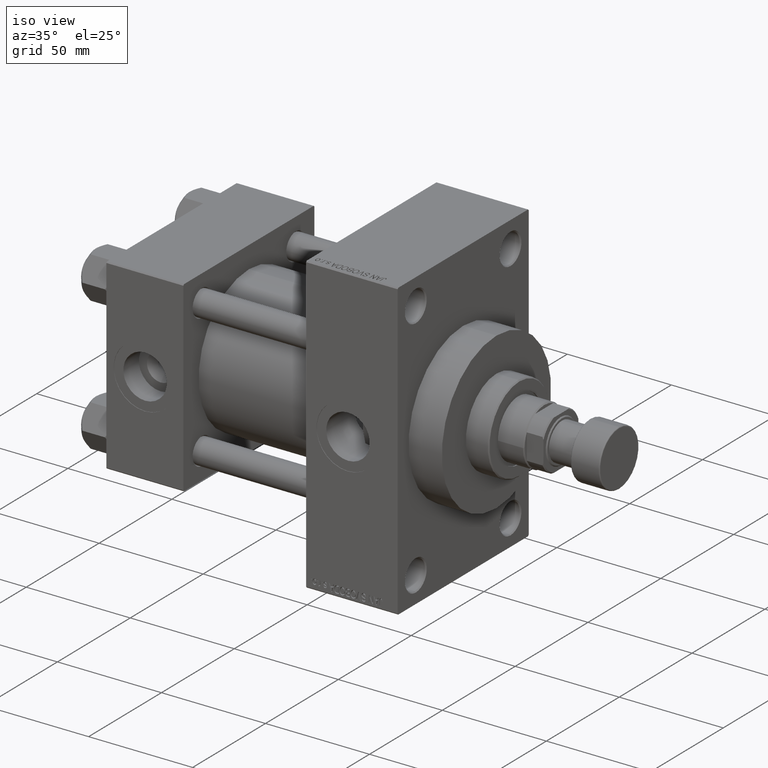
[diagram: clean part render]
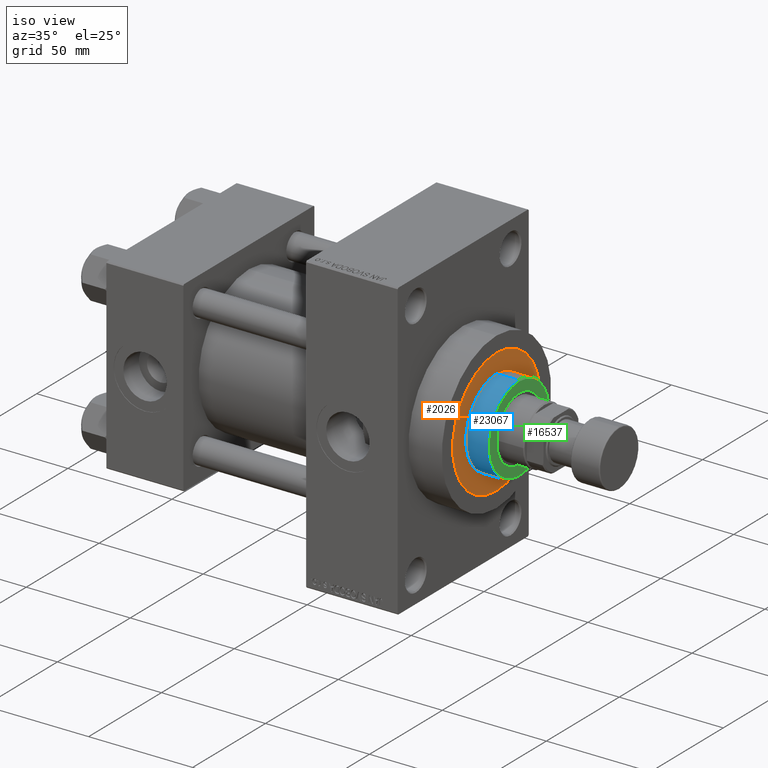
[diagram: same view with three faces highlighted in distinct colors, each labeled with its STEP entity id]
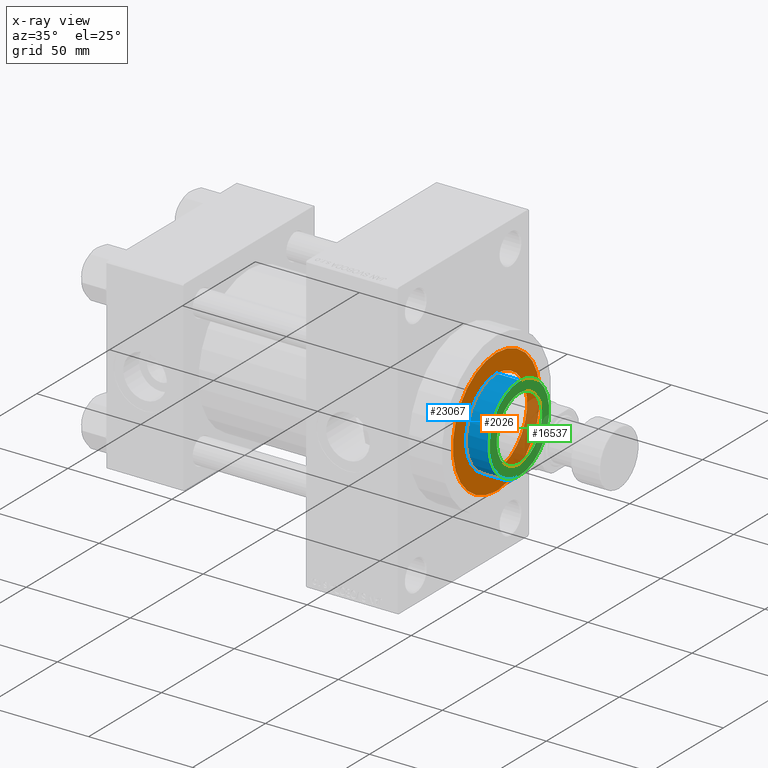
[diagram: x-ray of the same camera — body ghosted, the three highlighted faces saturated]
A machine part, iso view with three faces highlighted in distinct colors.
The next image is the same camera in x-ray (body ghosted, the three faces saturated) — at least one of them is partly hidden behind the body in this view.
Their STEP definitions:

[orange] entity #2026 — the highlighted planar face has unit normal (1, -0, -0).
#1136 = CARTESIAN_POINT ( 'NONE',  ( -30.00000000000000000, 0.000000000000000000, 43.25999999999999801 ) ) ;
#2026 = ADVANCED_FACE ( 'NONE', ( #4535, #11760 ), #22506, .T. ) ;
#2243 = VERTEX_POINT ( 'NONE', #36605 ) ;
#2377 = EDGE_CURVE ( 'NONE', #46718, #32884, #3151, .T. ) ;
#2718 = EDGE_CURVE ( 'NONE', #39405, #2243, #20678, .T. ) ;
#3151 = CIRCLE ( 'NONE', #34219, 21.00000000000000000 ) ;
#4535 = FACE_BOUND ( 'NONE', #27519, .T. ) ;
#5535 = AXIS2_PLACEMENT_3D ( 'NONE', #19518, #37767, #18780 ) ;
#7117 = CARTESIAN_POINT ( 'NONE',  ( 0.000000000000000000, 0.000000000000000000, 43.25999999999999801 ) ) ;
#9986 = EDGE_CURVE ( 'NONE', #2243, #39405, #10427, .T. ) ;
#10427 = CIRCLE ( 'NONE', #44766, 30.00000000000000000 ) ;
#11760 = FACE_OUTER_BOUND ( 'NONE', #38059, .T. ) ;
#13329 = CIRCLE ( 'NONE', #43679, 21.00000000000000000 ) ;
#14772 = DIRECTION ( 'NONE',  ( 1.000000000000000000, 0.000000000000000000, -0.000000000000000000 ) ) ;
#15590 = DIRECTION ( 'NONE',  ( 0.000000000000000000, 0.000000000000000000, 1.000000000000000000 ) ) ;
#18780 = DIRECTION ( 'NONE',  ( 1.000000000000000000, 0.000000000000000000, 0.000000000000000000 ) ) ;
#18835 = DIRECTION ( 'NONE',  ( 1.000000000000000000, 0.000000000000000000, 0.000000000000000000 ) ) ;
#19518 = CARTESIAN_POINT ( 'NONE',  ( 0.000000000000000000, 0.000000000000000000, 43.25999999999999801 ) ) ;
#19847 = DIRECTION ( 'NONE',  ( 1.000000000000000000, 0.000000000000000000, 0.000000000000000000 ) ) ;
#20092 = CARTESIAN_POINT ( 'NONE',  ( 0.000000000000000000, 0.000000000000000000, 43.25999999999999801 ) ) ;
#20678 = CIRCLE ( 'NONE', #5535, 30.00000000000000000 ) ;
#22338 = DIRECTION ( 'NONE',  ( 0.000000000000000000, 0.000000000000000000, 1.000000000000000000 ) ) ;
#22506 = PLANE ( 'NONE',  #45409 ) ;
#23451 = CARTESIAN_POINT ( 'NONE',  ( 21.00000000000000000, 2.571758278209441661E-15, 43.25999999999999801 ) ) ;
#25426 = ORIENTED_EDGE ( 'NONE', *, *, #48857, .F. ) ;
#27519 = EDGE_LOOP ( 'NONE', ( #25426, #28649 ) ) ;
#28649 = ORIENTED_EDGE ( 'NONE', *, *, #2377, .F. ) ;
#31492 = CARTESIAN_POINT ( 'NONE',  ( 0.000000000000000000, 0.000000000000000000, 43.25999999999999801 ) ) ;
#31746 = DIRECTION ( 'NONE',  ( 0.000000000000000000, 0.000000000000000000, 1.000000000000000000 ) ) ;
#32884 = VERTEX_POINT ( 'NONE', #35078 ) ;
#33780 = DIRECTION ( 'NONE',  ( 0.000000000000000000, 0.000000000000000000, 1.000000000000000000 ) ) ;
#34219 = AXIS2_PLACEMENT_3D ( 'NONE', #7117, #22338, #18835 ) ;
#35078 = CARTESIAN_POINT ( 'NONE',  ( -21.00000000000000000, 0.000000000000000000, 43.25999999999999801 ) ) ;
#36605 = CARTESIAN_POINT ( 'NONE',  ( 30.00000000000000000, 3.673940397442059178E-15, 43.25999999999999801 ) ) ;
#37767 = DIRECTION ( 'NONE',  ( 0.000000000000000000, 0.000000000000000000, 1.000000000000000000 ) ) ;
#38059 = EDGE_LOOP ( 'NONE', ( #47936, #40858 ) ) ;
#38982 = DIRECTION ( 'NONE',  ( 1.000000000000000000, 0.000000000000000000, 0.000000000000000000 ) ) ;
#39405 = VERTEX_POINT ( 'NONE', #1136 ) ;
#40858 = ORIENTED_EDGE ( 'NONE', *, *, #9986, .T. ) ;
#42251 = CARTESIAN_POINT ( 'NONE',  ( 0.000000000000000000, 0.000000000000000000, 43.25999999999999801 ) ) ;
#43679 = AXIS2_PLACEMENT_3D ( 'NONE', #20092, #15590, #19847 ) ;
#44766 = AXIS2_PLACEMENT_3D ( 'NONE', #31492, #31746, #38982 ) ;
#45409 = AXIS2_PLACEMENT_3D ( 'NONE', #42251, #33780, #14772 ) ;
#46718 = VERTEX_POINT ( 'NONE', #23451 ) ;
#47936 = ORIENTED_EDGE ( 'NONE', *, *, #2718, .T. ) ;
#48857 = EDGE_CURVE ( 'NONE', #32884, #46718, #13329, .T. ) ;

[blue] entity #23067 — the highlighted cylindrical surface (partial cylindrical patch) has radius 21 mm, axis along (-1, 0, 0).
#1891 = CIRCLE ( 'NONE', #29805, 21.00000000000000000 ) ;
#2377 = EDGE_CURVE ( 'NONE', #46718, #32884, #3151, .T. ) ;
#2932 = FACE_OUTER_BOUND ( 'NONE', #34255, .T. ) ;
#3151 = CIRCLE ( 'NONE', #34219, 21.00000000000000000 ) ;
#6632 = ORIENTED_EDGE ( 'NONE', *, *, #30369, .F. ) ;
#7117 = CARTESIAN_POINT ( 'NONE',  ( 0.000000000000000000, 0.000000000000000000, 43.25999999999999801 ) ) ;
#11158 = ORIENTED_EDGE ( 'NONE', *, *, #2377, .T. ) ;
#11793 = LINE ( 'NONE', #42538, #38779 ) ;
#12049 = CARTESIAN_POINT ( 'NONE',  ( 21.00000000000000000, 2.571758278209441661E-15, 53.76000000000001933 ) ) ;
#12584 = LINE ( 'NONE', #24575, #48838 ) ;
#15061 = DIRECTION ( 'NONE',  ( -0.000000000000000000, -0.000000000000000000, -1.000000000000000000 ) ) ;
#15303 = CYLINDRICAL_SURFACE ( 'NONE', #43505, 21.00000000000000000 ) ;
#17657 = DIRECTION ( 'NONE',  ( -1.000000000000000000, 0.000000000000000000, 0.000000000000000000 ) ) ;
#18835 = DIRECTION ( 'NONE',  ( 1.000000000000000000, 0.000000000000000000, 0.000000000000000000 ) ) ;
#18884 = EDGE_CURVE ( 'NONE', #43806, #26006, #1891, .T. ) ;
#22338 = DIRECTION ( 'NONE',  ( 0.000000000000000000, 0.000000000000000000, 1.000000000000000000 ) ) ;
#23067 = ADVANCED_FACE ( 'NONE', ( #2932 ), #15303, .T. ) ;
#23451 = CARTESIAN_POINT ( 'NONE',  ( 21.00000000000000000, 2.571758278209441661E-15, 43.25999999999999801 ) ) ;
#24575 = CARTESIAN_POINT ( 'NONE',  ( -21.00000000000000000, 0.000000000000000000, 54.26000000000000512 ) ) ;
#25267 = EDGE_CURVE ( 'NONE', #26006, #46718, #11793, .T. ) ;
#26006 = VERTEX_POINT ( 'NONE', #12049 ) ;
#27782 = CARTESIAN_POINT ( 'NONE',  ( -21.00000000000000000, 0.000000000000000000, 53.76000000000001933 ) ) ;
#28078 = ORIENTED_EDGE ( 'NONE', *, *, #25267, .T. ) ;
#29805 = AXIS2_PLACEMENT_3D ( 'NONE', #40710, #33950, #36710 ) ;
#30369 = EDGE_CURVE ( 'NONE', #43806, #32884, #12584, .T. ) ;
#31837 = DIRECTION ( 'NONE',  ( -0.000000000000000000, -0.000000000000000000, -1.000000000000000000 ) ) ;
#32884 = VERTEX_POINT ( 'NONE', #35078 ) ;
#33950 = DIRECTION ( 'NONE',  ( 0.000000000000000000, 0.000000000000000000, -1.000000000000000000 ) ) ;
#34219 = AXIS2_PLACEMENT_3D ( 'NONE', #7117, #22338, #18835 ) ;
#34255 = EDGE_LOOP ( 'NONE', ( #40206, #28078, #11158, #6632 ) ) ;
#35078 = CARTESIAN_POINT ( 'NONE',  ( -21.00000000000000000, 0.000000000000000000, 43.25999999999999801 ) ) ;
#36710 = DIRECTION ( 'NONE',  ( 1.000000000000000000, 0.000000000000000000, 0.000000000000000000 ) ) ;
#38279 = DIRECTION ( 'NONE',  ( -0.000000000000000000, -0.000000000000000000, -1.000000000000000000 ) ) ;
#38779 = VECTOR ( 'NONE', #38279, 1000.000000000000000 ) ;
#40206 = ORIENTED_EDGE ( 'NONE', *, *, #18884, .T. ) ;
#40710 = CARTESIAN_POINT ( 'NONE',  ( 0.000000000000000000, 0.000000000000000000, 53.76000000000001933 ) ) ;
#42538 = CARTESIAN_POINT ( 'NONE',  ( 21.00000000000000000, 2.571758278209441661E-15, 54.26000000000000512 ) ) ;
#43505 = AXIS2_PLACEMENT_3D ( 'NONE', #44656, #15061, #17657 ) ;
#43806 = VERTEX_POINT ( 'NONE', #27782 ) ;
#44656 = CARTESIAN_POINT ( 'NONE',  ( 0.000000000000000000, 0.000000000000000000, 54.26000000000000512 ) ) ;
#46718 = VERTEX_POINT ( 'NONE', #23451 ) ;
#48838 = VECTOR ( 'NONE', #31837, 1000.000000000000000 ) ;

[green] entity #16537 — the highlighted planar face has unit normal (1, -0, -0).
#714 = CIRCLE ( 'NONE', #48576, 15.50000000000000000 ) ;
#2268 = CARTESIAN_POINT ( 'NONE',  ( 0.000000000000000000, 0.000000000000000000, 54.26000000000000512 ) ) ;
#2507 = DIRECTION ( 'NONE',  ( 1.000000000000000000, 0.000000000000000000, 0.000000000000000000 ) ) ;
#3187 = EDGE_CURVE ( 'NONE', #6337, #5268, #6353, .T. ) ;
#4751 = AXIS2_PLACEMENT_3D ( 'NONE', #38251, #30277, #23509 ) ;
#5099 = EDGE_LOOP ( 'NONE', ( #20985, #12168 ) ) ;
#5191 = EDGE_CURVE ( 'NONE', #5268, #6337, #714, .T. ) ;
#5268 = VERTEX_POINT ( 'NONE', #31891 ) ;
#5882 = EDGE_CURVE ( 'NONE', #32939, #36657, #22267, .T. ) ;
#6337 = VERTEX_POINT ( 'NONE', #26132 ) ;
#6353 = CIRCLE ( 'NONE', #32680, 15.50000000000000000 ) ;
#7601 = CARTESIAN_POINT ( 'NONE',  ( -20.50000000000001776, 0.000000000000000000, 54.26000000000000512 ) ) ;
#12168 = ORIENTED_EDGE ( 'NONE', *, *, #5191, .F. ) ;
#13373 = CARTESIAN_POINT ( 'NONE',  ( 0.000000000000000000, 0.000000000000000000, 54.26000000000000512 ) ) ;
#13485 = DIRECTION ( 'NONE',  ( 0.000000000000000000, 0.000000000000000000, 1.000000000000000000 ) ) ;
#14723 = DIRECTION ( 'NONE',  ( 0.000000000000000000, 0.000000000000000000, 1.000000000000000000 ) ) ;
#16537 = ADVANCED_FACE ( 'NONE', ( #25873, #40852 ), #21354, .T. ) ;
#18008 = EDGE_LOOP ( 'NONE', ( #24198, #19153 ) ) ;
#18596 = DIRECTION ( 'NONE',  ( 1.000000000000000000, 0.000000000000000000, -0.000000000000000000 ) ) ;
#18750 = AXIS2_PLACEMENT_3D ( 'NONE', #2268, #13485, #2507 ) ;
#19153 = ORIENTED_EDGE ( 'NONE', *, *, #41362, .T. ) ;
#20985 = ORIENTED_EDGE ( 'NONE', *, *, #3187, .F. ) ;
#21354 = PLANE ( 'NONE',  #33023 ) ;
#22267 = CIRCLE ( 'NONE', #4751, 20.50000000000001776 ) ;
#23509 = DIRECTION ( 'NONE',  ( 1.000000000000000000, 0.000000000000000000, 0.000000000000000000 ) ) ;
#24198 = ORIENTED_EDGE ( 'NONE', *, *, #5882, .T. ) ;
#25873 = FACE_BOUND ( 'NONE', #5099, .T. ) ;
#26132 = CARTESIAN_POINT ( 'NONE',  ( 15.50000000000000000, 0.000000000000000000, 54.26000000000000512 ) ) ;
#28638 = DIRECTION ( 'NONE',  ( 0.000000000000000000, 0.000000000000000000, 1.000000000000000000 ) ) ;
#29861 = DIRECTION ( 'NONE',  ( 0.000000000000000000, 0.000000000000000000, 1.000000000000000000 ) ) ;
#29983 = DIRECTION ( 'NONE',  ( 1.000000000000000000, 0.000000000000000000, 0.000000000000000000 ) ) ;
#30277 = DIRECTION ( 'NONE',  ( 0.000000000000000000, 0.000000000000000000, 1.000000000000000000 ) ) ;
#31891 = CARTESIAN_POINT ( 'NONE',  ( -15.50000000000000000, 1.898202538678397557E-15, 54.26000000000000512 ) ) ;
#32628 = DIRECTION ( 'NONE',  ( 1.000000000000000000, 0.000000000000000000, 0.000000000000000000 ) ) ;
#32680 = AXIS2_PLACEMENT_3D ( 'NONE', #34956, #14723, #29983 ) ;
#32939 = VERTEX_POINT ( 'NONE', #7601 ) ;
#33023 = AXIS2_PLACEMENT_3D ( 'NONE', #36852, #29861, #18596 ) ;
#34956 = CARTESIAN_POINT ( 'NONE',  ( 0.000000000000000000, 0.000000000000000000, 54.26000000000000512 ) ) ;
#36657 = VERTEX_POINT ( 'NONE', #44402 ) ;
#36852 = CARTESIAN_POINT ( 'NONE',  ( 0.000000000000000000, 0.000000000000000000, 54.26000000000000512 ) ) ;
#38251 = CARTESIAN_POINT ( 'NONE',  ( 0.000000000000000000, 0.000000000000000000, 54.26000000000000512 ) ) ;
#40852 = FACE_OUTER_BOUND ( 'NONE', #18008, .T. ) ;
#41091 = CIRCLE ( 'NONE', #18750, 20.50000000000001776 ) ;
#41362 = EDGE_CURVE ( 'NONE', #36657, #32939, #41091, .T. ) ;
#44402 = CARTESIAN_POINT ( 'NONE',  ( 20.50000000000001776, 2.541142108230759057E-15, 54.26000000000000512 ) ) ;
#48576 = AXIS2_PLACEMENT_3D ( 'NONE', #13373, #28638, #32628 ) ;